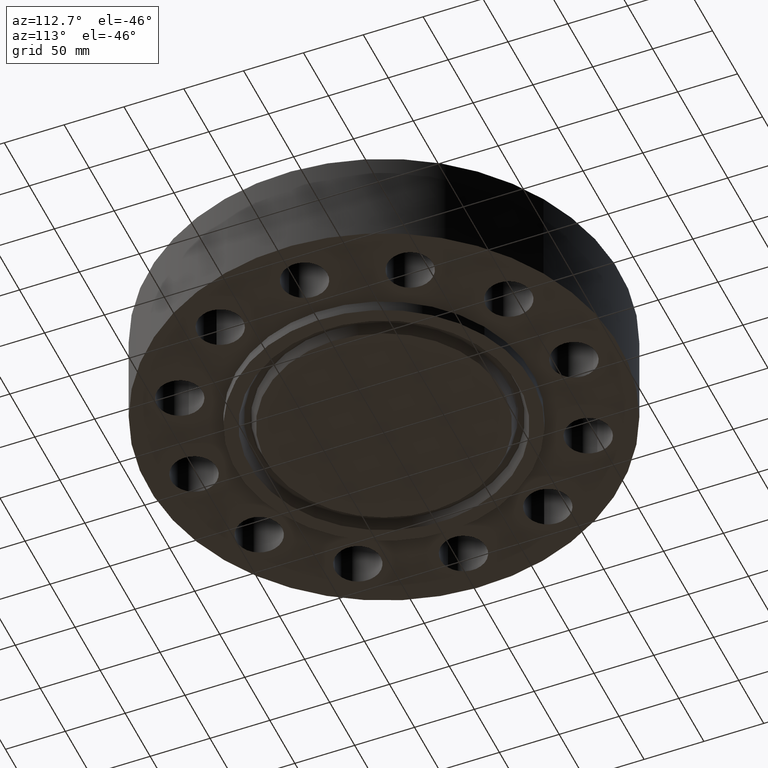
[diagram: clean part render]
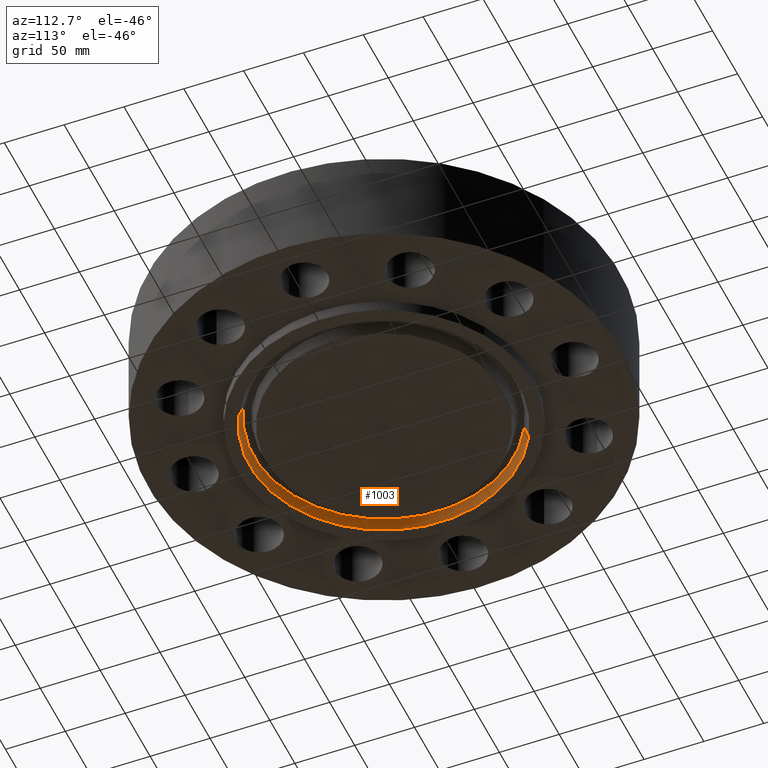
[diagram: same view with one face highlighted and labeled with its STEP entity id]
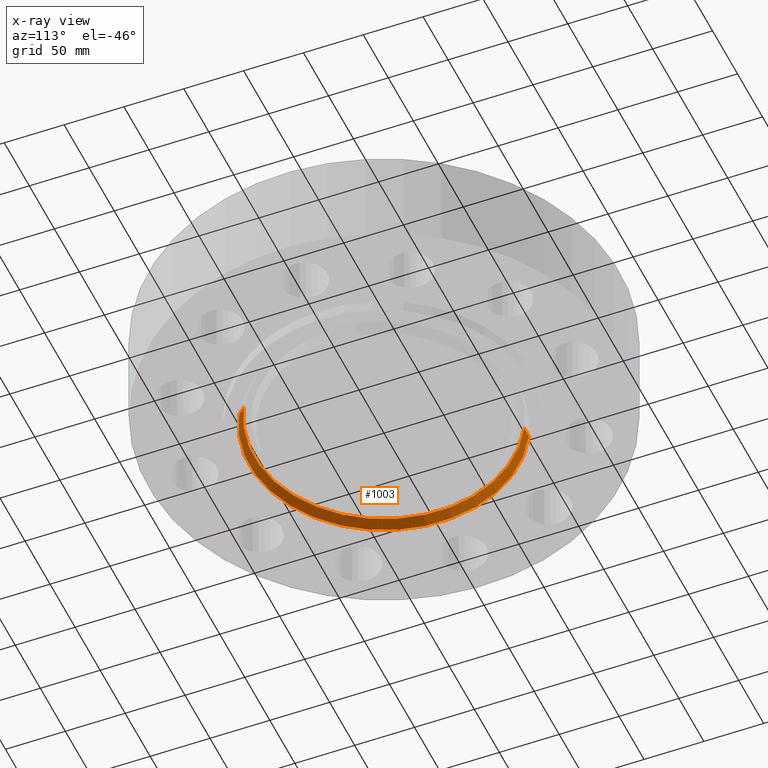
[diagram: x-ray of the same camera — body ghosted, the highlighted face saturated]
A machine part, auxiliary view. The second image highlights one B-rep face of the part: STEP entity #1003.
The next image is the same camera in x-ray: the body ghosted, the highlighted face saturated — about 0% of this face is hidden behind the body in this view.
In plain terms, the highlighted conical surface has half-angle 23 deg.
Its self-contained STEP definition (entity closure, byte-faithful):
#79=AXIS2_PLACEMENT_3D('Circle Axis2P3D',#77,#78,$) ;
#949=AXIS2_PLACEMENT_3D('Circle Axis2P3D',#947,#948,$) ;
#985=AXIS2_PLACEMENT_3D('Cone Axis2P3D',#982,#983,#984) ;
#77=CARTESIAN_POINT('Axis2P3D Location',(2.79741234551E-016,0.,-0.375000000001)) ;
#81=CARTESIAN_POINT('Vertex',(2.12001973172,-3.88067008869,-0.375000000001)) ;
#83=CARTESIAN_POINT('Vertex',(-2.12001973172,3.88067008869,-0.375000000001)) ;
#947=CARTESIAN_POINT('Axis2P3D Location',(0.,0.,-0.0383839389053)) ;
#951=CARTESIAN_POINT('Vertex',(-2.05151699414,3.75527666865,-0.0383839389053)) ;
#953=CARTESIAN_POINT('Vertex',(2.05151699414,-3.75527666865,-0.0383839389053)) ;
#982=CARTESIAN_POINT('Axis2P3D Location',(0.,0.,-0.0383839389053)) ;
#987=CARTESIAN_POINT('Line Origine',(-2.08576836293,3.81797337867,-0.206691969453)) ;
#992=CARTESIAN_POINT('Line Origine',(2.08576836293,-3.81797337867,-0.206691969453)) ;
#78=DIRECTION('Axis2P3D Direction',(0.,0.,-0.0393700787402)) ;
#948=DIRECTION('Axis2P3D Direction',(0.,0.,0.0393700787402)) ;
#983=DIRECTION('Axis2P3D Direction',(-0.,-0.,-0.0393700787402)) ;
#984=DIRECTION('Axis2P3D XDirection',(-0.0188750212049,0.0345504945626,0.)) ;
#988=DIRECTION('Vector Direction',(-0.00737505833565,0.0134999537303,-0.0362403485611)) ;
#993=DIRECTION('Vector Direction',(0.00737505833565,-0.0134999537303,-0.0362403485611)) ;
#989=VECTOR('Line Direction',#988,0.0393700787402) ;
#994=VECTOR('Line Direction',#993,0.0393700787402) ;
#998=ORIENTED_EDGE('',*,*,#85,.T.) ;
#999=ORIENTED_EDGE('',*,*,#991,.T.) ;
#1000=ORIENTED_EDGE('',*,*,#955,.T.) ;
#1001=ORIENTED_EDGE('',*,*,#996,.F.) ;
#1003=ADVANCED_FACE('PartBody',(#1002),#986,.F.) ;
#80=CIRCLE('generated circle',#79,4.42200000002) ;
#950=CIRCLE('generated circle',#949,4.27911495935) ;
#986=CONICAL_SURFACE('Cone',#985,4.27911495935,0.401425727959) ;
#85=EDGE_CURVE('',#82,#84,#80,.T.) ;
#955=EDGE_CURVE('',#952,#954,#950,.T.) ;
#991=EDGE_CURVE('',#84,#952,#990,.F.) ;
#996=EDGE_CURVE('',#82,#954,#995,.F.) ;
#997=EDGE_LOOP('',(#998,#999,#1000,#1001)) ;
#1002=FACE_OUTER_BOUND('',#997,.T.) ;
#990=LINE('Line',#987,#989) ;
#995=LINE('Line',#992,#994) ;
#82=VERTEX_POINT('',#81) ;
#84=VERTEX_POINT('',#83) ;
#952=VERTEX_POINT('',#951) ;
#954=VERTEX_POINT('',#953) ;